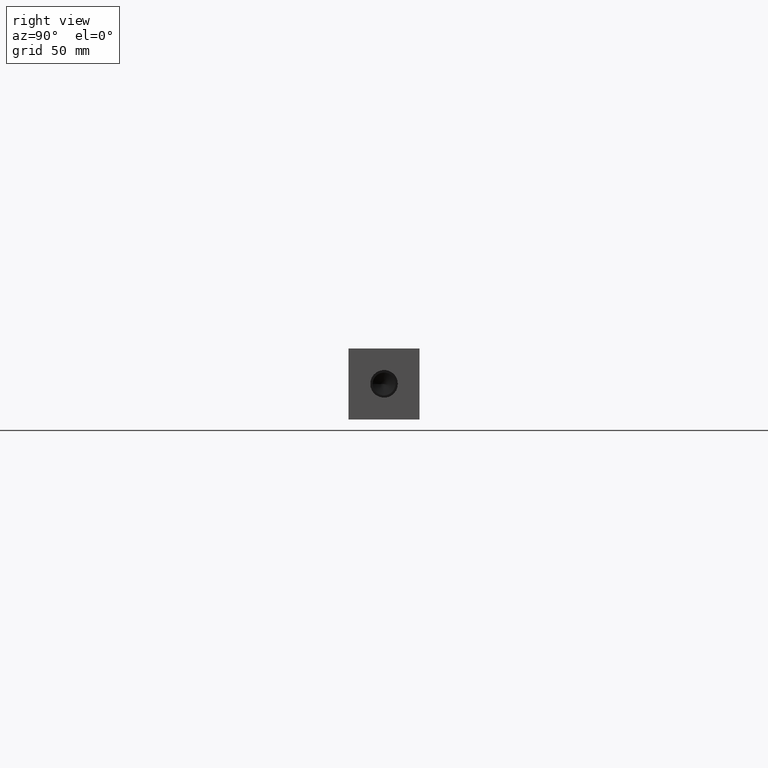
[diagram: clean part render]
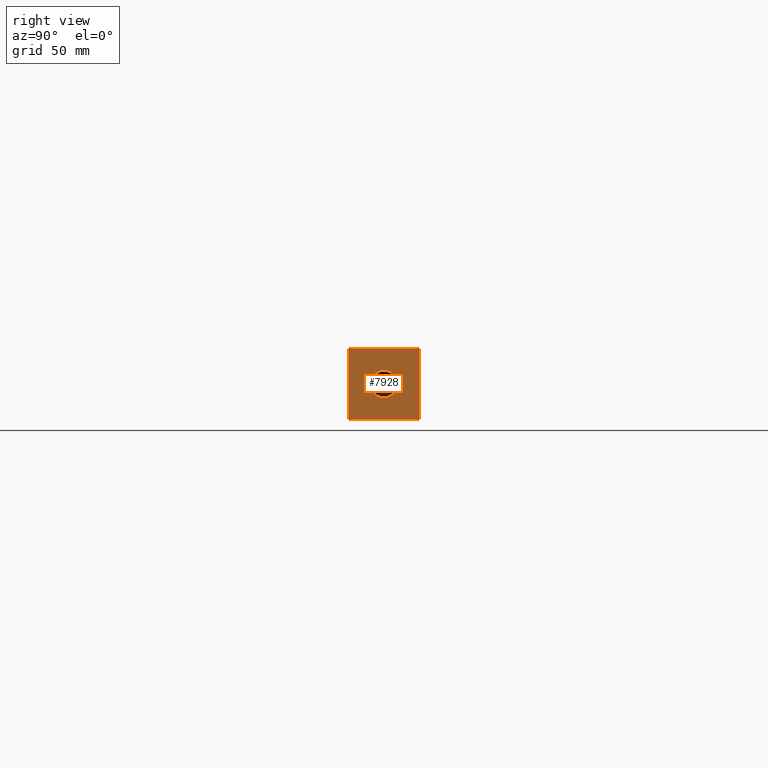
[diagram: same view with one face highlighted and labeled with its STEP entity id]
A machine part, right view. The second image highlights one B-rep face of the part: STEP entity #7928.
In plain terms, the highlighted planar face has unit normal (1, 0, 0).
Its self-contained STEP definition (entity closure, byte-faithful):
#267=CIRCLE('',#8432,8.6487);
#268=CIRCLE('',#8433,8.6487);
#344=FACE_BOUND('',#1482,.T.);
#601=PLANE('',#8448);
#1007=FACE_OUTER_BOUND('',#1481,.T.);
#1481=EDGE_LOOP('',(#7105,#7106,#7107,#7108));
#1482=EDGE_LOOP('',(#7109,#7110));
#1771=LINE('',#12045,#2506);
#2233=LINE('',#13528,#2968);
#2234=LINE('',#13531,#2969);
#2235=LINE('',#13532,#2970);
#2506=VECTOR('',#8873,10.);
#2968=VECTOR('',#10189,10.);
#2969=VECTOR('',#10192,10.);
#2970=VECTOR('',#10193,10.);
#3421=VERTEX_POINT('',#12042);
#3422=VERTEX_POINT('',#12044);
#3876=VERTEX_POINT('',#13490);
#3877=VERTEX_POINT('',#13491);
#3888=VERTEX_POINT('',#13526);
#3889=VERTEX_POINT('',#13530);
#4311=EDGE_CURVE('',#3421,#3422,#1771,.T.);
#4955=EDGE_CURVE('',#3876,#3877,#267,.T.);
#4956=EDGE_CURVE('',#3877,#3876,#268,.T.);
#4973=EDGE_CURVE('',#3888,#3422,#2233,.T.);
#4974=EDGE_CURVE('',#3889,#3888,#2234,.T.);
#4975=EDGE_CURVE('',#3889,#3421,#2235,.T.);
#7105=ORIENTED_EDGE('',*,*,#4974,.T.);
#7106=ORIENTED_EDGE('',*,*,#4973,.T.);
#7107=ORIENTED_EDGE('',*,*,#4311,.F.);
#7108=ORIENTED_EDGE('',*,*,#4975,.F.);
#7109=ORIENTED_EDGE('',*,*,#4955,.T.);
#7110=ORIENTED_EDGE('',*,*,#4956,.T.);
#7928=ADVANCED_FACE('',(#1007,#344),#601,.T.);
#8432=AXIS2_PLACEMENT_3D('',#13492,#10148,#10149);
#8433=AXIS2_PLACEMENT_3D('',#13493,#10150,#10151);
#8448=AXIS2_PLACEMENT_3D('',#13529,#10190,#10191);
#8873=DIRECTION('',(0.,1.,0.));
#10148=DIRECTION('center_axis',(-1.,0.,0.));
#10149=DIRECTION('ref_axis',(0.,1.,0.));
#10150=DIRECTION('center_axis',(-1.,0.,0.));
#10151=DIRECTION('ref_axis',(0.,1.,0.));
#10189=DIRECTION('',(0.,0.,1.));
#10190=DIRECTION('center_axis',(1.,0.,0.));
#10191=DIRECTION('ref_axis',(0.,1.,0.));
#10192=DIRECTION('',(0.,1.,0.));
#10193=DIRECTION('',(0.,0.,1.));
#12042=CARTESIAN_POINT('',(454.025,0.,44.45));
#12044=CARTESIAN_POINT('',(454.025,44.45,44.45));
#12045=CARTESIAN_POINT('',(454.025,0.,44.45));
#13490=CARTESIAN_POINT('',(454.025,30.8737,22.225));
#13491=CARTESIAN_POINT('',(454.025,13.5763,22.225));
#13492=CARTESIAN_POINT('Origin',(454.025,22.225,22.225));
#13493=CARTESIAN_POINT('Origin',(454.025,22.225,22.225));
#13526=CARTESIAN_POINT('',(454.025,44.45,0.));
#13528=CARTESIAN_POINT('',(454.025,44.45,0.));
#13529=CARTESIAN_POINT('Origin',(454.025,0.,0.));
#13530=CARTESIAN_POINT('',(454.025,0.,0.));
#13531=CARTESIAN_POINT('',(454.025,0.,0.));
#13532=CARTESIAN_POINT('',(454.025,0.,0.));